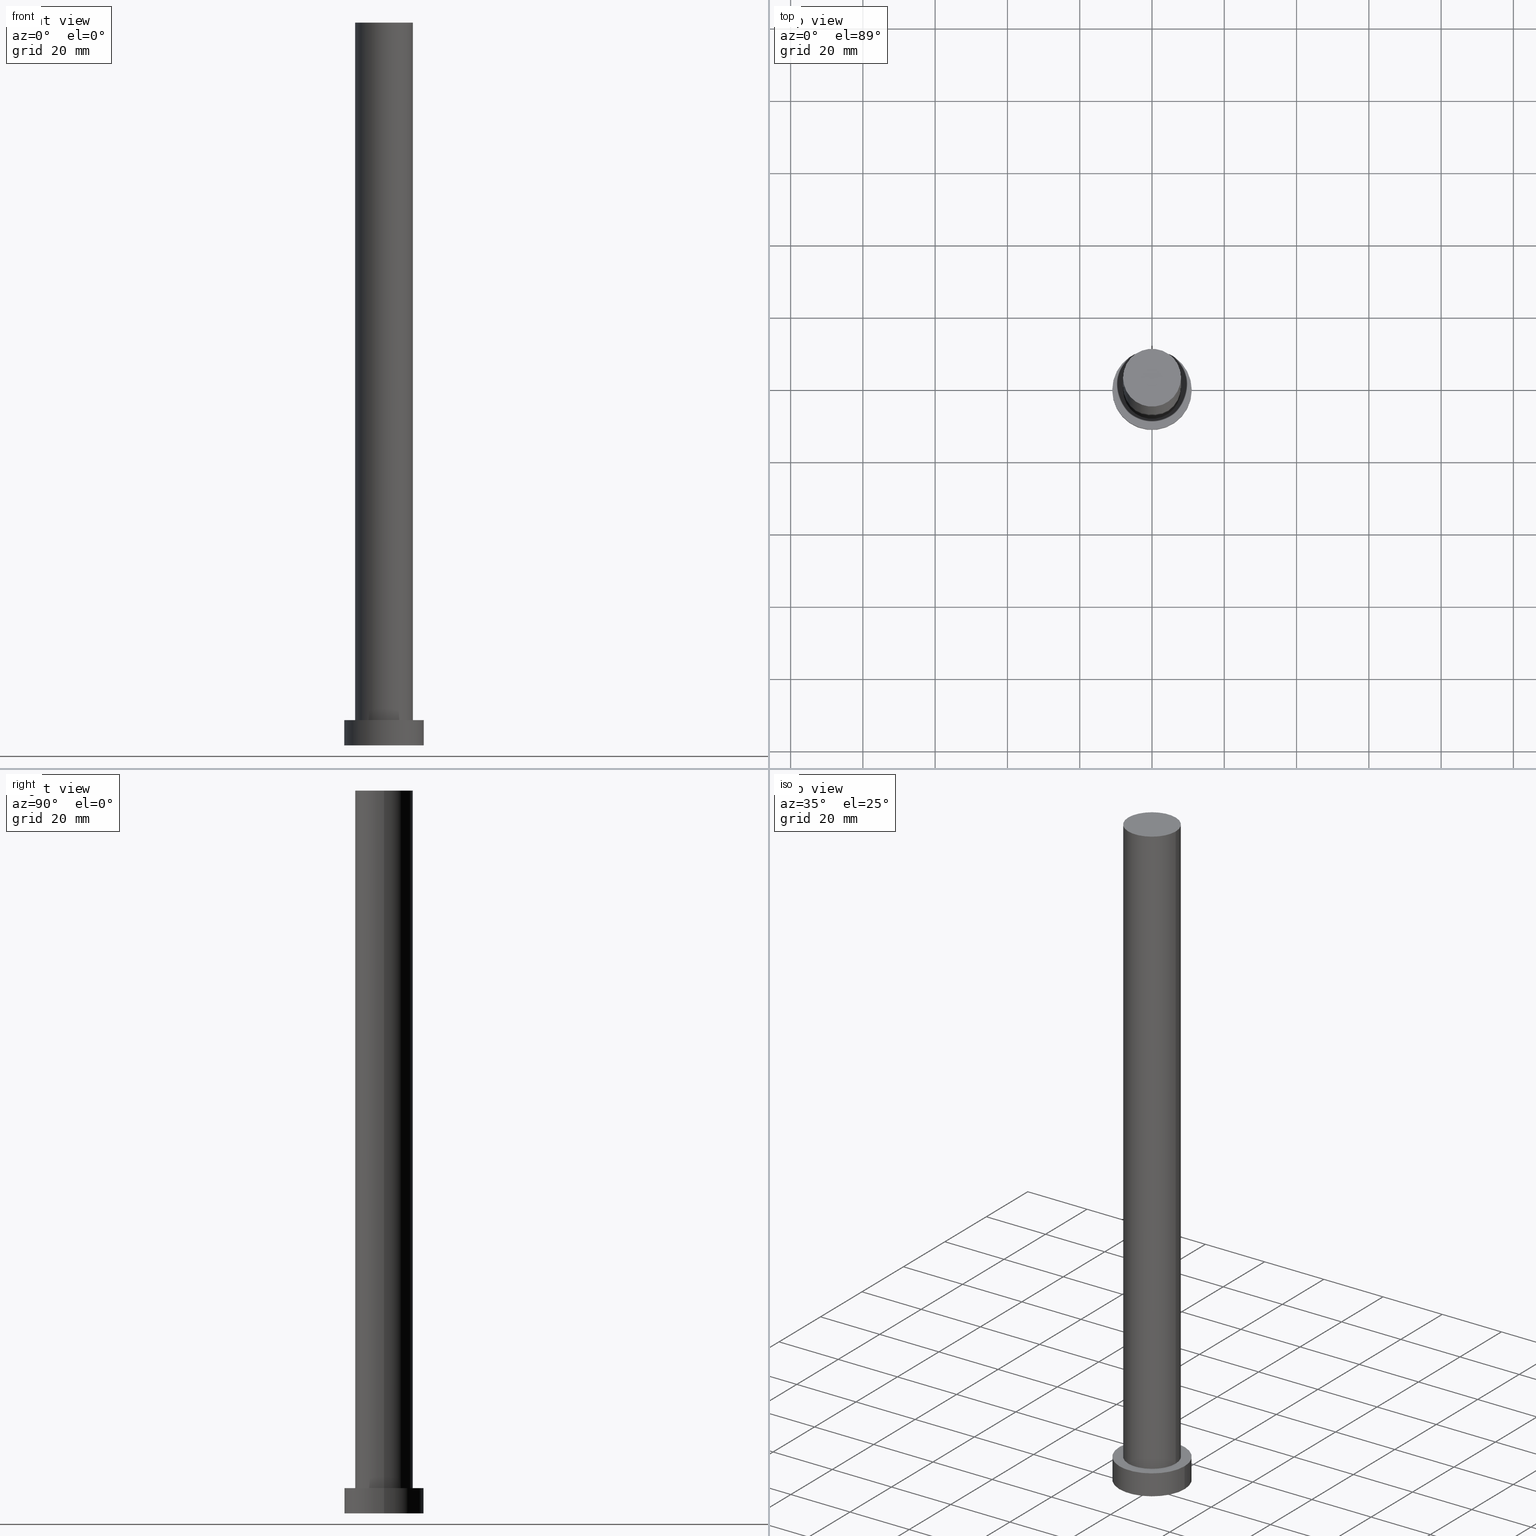
[diagram: canonical four-view strip — front | top / right | iso, engineering-drawing reading convention]
A machine part, canonical four-view strip (front | top / right | iso — engineering-drawing reading convention). The complete STEP part file that produces these views, byte-faithful:
ISO-10303-21;
HEADER;
FILE_DESCRIPTION (( 'STEP AP203' ),
    '1' );
FILE_NAME ('33cf.STEP',
    '2023-02-13T09:46:55',
    ( '' ),
    ( '' ),
    'SwSTEP 2.0',
    'SolidWorks 2019',
    '' );
FILE_SCHEMA (( 'CONFIG_CONTROL_DESIGN' ));
ENDSEC;

DATA;
#1 = PERSON_AND_ORGANIZATION_ROLE ( 'creator' ) ;
#2 = APPROVAL_PERSON_ORGANIZATION ( #197, #163, #43 ) ;
#3 = DIRECTION ( 'NONE',  ( 1.000000000000000000, 0.000000000000000000, 0.000000000000000000 ) ) ;
#4 = AXIS2_PLACEMENT_3D ( 'NONE', #236, #178, #3 ) ;
#5 = APPROVAL_ROLE ( '' ) ;
#6 = PERSON_AND_ORGANIZATION_ROLE ( 'design_owner' ) ;
#7 = CARTESIAN_POINT ( 'NONE',  ( 0.000000000000000000, 0.000000000000000000, 200.0000000000000000 ) ) ;
#8 = CARTESIAN_POINT ( 'NONE',  ( 0.000000000000000000, 0.000000000000000000, 7.000000000000000000 ) ) ;
#9 = CARTESIAN_POINT ( 'NONE',  ( 0.000000000000000000, 0.000000000000000000, 7.000000000000000000 ) ) ;
#10 = CARTESIAN_POINT ( 'NONE',  ( 0.000000000000000000, 0.000000000000000000, 7.000000000000000000 ) ) ;
#11 = CIRCLE ( 'NONE', #73, 11.00000000000000000 ) ;
#12 = CARTESIAN_POINT ( 'NONE',  ( -11.00000000000000000, 0.000000000000000000, 7.000000000000000000 ) ) ;
#13 = EDGE_LOOP ( 'NONE', ( #125, #53, #192, #211 ) ) ;
#14 = CC_DESIGN_PERSON_AND_ORGANIZATION_ASSIGNMENT ( #20, #154, ( #205 ) ) ;
#15 = UNCERTAINTY_MEASURE_WITH_UNIT (LENGTH_MEASURE( 1.000000000000000082E-05 ), #190, 'distance_accuracy_value', 'NONE');
#16 = VERTEX_POINT ( 'NONE', #21 ) ;
#17 = EDGE_CURVE ( 'NONE', #16, #52, #51, .T. ) ;
#18 = VERTEX_POINT ( 'NONE', #45 ) ;
#19 = PERSON_AND_ORGANIZATION_ROLE ( 'creator' ) ;
#20 = PERSON_AND_ORGANIZATION ( #120, #138 ) ;
#21 = CARTESIAN_POINT ( 'NONE',  ( -11.00000000000000000, 0.000000000000000000, 7.000000000000000000 ) ) ;
#22 = DATE_TIME_ROLE ( 'classification_date' ) ;
#23 = CC_DESIGN_APPROVAL ( #163, ( #40 ) ) ;
#24 = CALENDAR_DATE ( 2023, 13, 2 ) ;
#25 = ADVANCED_FACE ( 'NONE', ( #79 ), #238, .T. ) ;
#26 = DIRECTION ( 'NONE',  ( 0.000000000000000000, 0.000000000000000000, 1.000000000000000000 ) ) ;
#27 = AXIS2_PLACEMENT_3D ( 'NONE', #198, #67, #244 ) ;
#28 = FACE_OUTER_BOUND ( 'NONE', #250, .T. ) ;
#29 = SECURITY_CLASSIFICATION ( '', '', #134 ) ;
#30 = ADVANCED_FACE ( 'NONE', ( #220 ), #103, .T. ) ;
#31 = LINE ( 'NONE', #102, #231 ) ;
#32 = DIRECTION ( 'NONE',  ( -0.000000000000000000, -0.000000000000000000, -1.000000000000000000 ) ) ;
#33 = PRODUCT_RELATED_PRODUCT_CATEGORY ( 'detail', '', ( #193 ) ) ;
#34 = CARTESIAN_POINT ( 'NONE',  ( 0.000000000000000000, 0.000000000000000000, 0.000000000000000000 ) ) ;
#35 = LOCAL_TIME ( 10, 46, 55.00000000000000000, #81 ) ;
#36 = DIRECTION ( 'NONE',  ( 1.000000000000000000, 0.000000000000000000, 0.000000000000000000 ) ) ;
#37 = ORIENTED_EDGE ( 'NONE', *, *, #246, .T. ) ;
#38 = CLOSED_SHELL ( 'NONE', ( #155, #253, #30, #144, #217, #25, #114 ) ) ;
#39 = LOCAL_TIME ( 10, 46, 55.00000000000000000, #41 ) ;
#40 = PRODUCT_DEFINITION ( 'NEZN�M�', '', #205, #171 ) ;
#41 = COORDINATED_UNIVERSAL_TIME_OFFSET ( 1, 0, .AHEAD. ) ;
#42 = PERSON_AND_ORGANIZATION ( #120, #138 ) ;
#43 = APPROVAL_ROLE ( '' ) ;
#44 = COORDINATED_UNIVERSAL_TIME_OFFSET ( 1, 0, .AHEAD. ) ;
#45 = CARTESIAN_POINT ( 'NONE',  ( 8.000000000000000000, 9.797174393178825657E-16, 200.0000000000000000 ) ) ;
#46 = PLANE ( 'NONE',  #142 ) ;
#47 = DIRECTION ( 'NONE',  ( -0.000000000000000000, -0.000000000000000000, -1.000000000000000000 ) ) ;
#48 = CARTESIAN_POINT ( 'NONE',  ( -11.00000000000000000, 0.000000000000000000, 0.000000000000000000 ) ) ;
#49 = CARTESIAN_POINT ( 'NONE',  ( 11.00000000000000000, 1.347111479062088405E-15, 7.000000000000000000 ) ) ;
#50 = DIRECTION ( 'NONE',  ( 0.000000000000000000, 0.000000000000000000, 1.000000000000000000 ) ) ;
#51 = CIRCLE ( 'NONE', #4, 11.00000000000000000 ) ;
#52 = VERTEX_POINT ( 'NONE', #49 ) ;
#53 = ORIENTED_EDGE ( 'NONE', *, *, #98, .F. ) ;
#54 = DIRECTION ( 'NONE',  ( 0.000000000000000000, 0.000000000000000000, 1.000000000000000000 ) ) ;
#55 = ORIENTED_EDGE ( 'NONE', *, *, #78, .T. ) ;
#56 = DIRECTION ( 'NONE',  ( -0.000000000000000000, -0.000000000000000000, -1.000000000000000000 ) ) ;
#57 = EDGE_LOOP ( 'NONE', ( #70, #146 ) ) ;
#58 = DATE_AND_TIME ( #111, #39 ) ;
#59 = AXIS2_PLACEMENT_3D ( 'NONE', #208, #54, #36 ) ;
#60 = DATE_AND_TIME ( #181, #35 ) ;
#61 = AXIS2_PLACEMENT_3D ( 'NONE', #7, #158, #66 ) ;
#62 = CARTESIAN_POINT ( 'NONE',  ( 0.000000000000000000, 0.000000000000000000, 200.0000000000000000 ) ) ;
#63 = DIRECTION ( 'NONE',  ( -0.000000000000000000, -0.000000000000000000, -1.000000000000000000 ) ) ;
#64 = CIRCLE ( 'NONE', #61, 8.000000000000000000 ) ;
#65 = CC_DESIGN_PERSON_AND_ORGANIZATION_ASSIGNMENT ( #132, #19, ( #40 ) ) ;
#66 = DIRECTION ( 'NONE',  ( 1.000000000000000000, 0.000000000000000000, 0.000000000000000000 ) ) ;
#67 = DIRECTION ( 'NONE',  ( -0.000000000000000000, -0.000000000000000000, -1.000000000000000000 ) ) ;
#68 = DIRECTION ( 'NONE',  ( 1.000000000000000000, 0.000000000000000000, -0.000000000000000000 ) ) ;
#69 = VECTOR ( 'NONE', #56, 1000.000000000000000 ) ;
#70 = ORIENTED_EDGE ( 'NONE', *, *, #156, .F. ) ;
#71 = ORIENTED_EDGE ( 'NONE', *, *, #226, .T. ) ;
#72 =( NAMED_UNIT ( * ) PLANE_ANGLE_UNIT ( ) SI_UNIT ( $, .RADIAN. ) );
#73 = AXIS2_PLACEMENT_3D ( 'NONE', #34, #87, #101 ) ;
#74 = DIRECTION ( 'NONE',  ( 1.000000000000000000, 0.000000000000000000, -0.000000000000000000 ) ) ;
#75 = APPLICATION_PROTOCOL_DEFINITION ( 'international standard', 'config_control_design', 1994, #150 ) ;
#76 = AXIS2_PLACEMENT_3D ( 'NONE', #126, #116, #196 ) ;
#77 = PERSON_AND_ORGANIZATION_ROLE ( 'classification_officer' ) ;
#78 = EDGE_CURVE ( 'NONE', #18, #96, #31, .T. ) ;
#79 = FACE_OUTER_BOUND ( 'NONE', #13, .T. ) ;
#80 = SHAPE_DEFINITION_REPRESENTATION ( #184, #219 ) ;
#81 = COORDINATED_UNIVERSAL_TIME_OFFSET ( 1, 0, .AHEAD. ) ;
#82 = APPROVAL ( #235, 'NEUR�EN�' ) ;
#83 = AXIS2_PLACEMENT_3D ( 'NONE', #9, #26, #218 ) ;
#84 = CYLINDRICAL_SURFACE ( 'NONE', #194, 8.000000000000000000 ) ;
#85 = DIRECTION ( 'NONE',  ( -0.000000000000000000, -0.000000000000000000, -1.000000000000000000 ) ) ;
#86 = DIRECTION ( 'NONE',  ( 0.000000000000000000, 0.000000000000000000, 1.000000000000000000 ) ) ;
#87 = DIRECTION ( 'NONE',  ( 0.000000000000000000, 0.000000000000000000, 1.000000000000000000 ) ) ;
#88 = CIRCLE ( 'NONE', #83, 11.00000000000000000 ) ;
#89 = ORIENTED_EDGE ( 'NONE', *, *, #148, .F. ) ;
#90 = DIRECTION ( 'NONE',  ( -0.000000000000000000, -0.000000000000000000, -1.000000000000000000 ) ) ;
#91 = EDGE_LOOP ( 'NONE', ( #108, #206, #71, #169 ) ) ;
#92 = AXIS2_PLACEMENT_3D ( 'NONE', #10, #182, #245 ) ;
#93 = CC_DESIGN_SECURITY_CLASSIFICATION ( #29, ( #205 ) ) ;
#94 = COORDINATED_UNIVERSAL_TIME_OFFSET ( 1, 0, .AHEAD. ) ;
#95 = PERSON_AND_ORGANIZATION ( #120, #138 ) ;
#96 = VERTEX_POINT ( 'NONE', #186 ) ;
#97 = DATE_AND_TIME ( #24, #157 ) ;
#98 = EDGE_CURVE ( 'NONE', #112, #18, #201, .T. ) ;
#99 = LINE ( 'NONE', #223, #179 ) ;
#100 = EDGE_CURVE ( 'NONE', #52, #16, #88, .T. ) ;
#101 = DIRECTION ( 'NONE',  ( 1.000000000000000000, 0.000000000000000000, 0.000000000000000000 ) ) ;
#102 = CARTESIAN_POINT ( 'NONE',  ( 8.000000000000000000, 9.797174393178825657E-16, 200.0000000000000000 ) ) ;
#103 = CYLINDRICAL_SURFACE ( 'NONE', #188, 11.00000000000000000 ) ;
#104 = CIRCLE ( 'NONE', #241, 8.000000000000000000 ) ;
#105 = DIRECTION ( 'NONE',  ( -0.000000000000000000, -0.000000000000000000, -1.000000000000000000 ) ) ;
#106 = FACE_OUTER_BOUND ( 'NONE', #174, .T. ) ;
#107 = CARTESIAN_POINT ( 'NONE',  ( 0.000000000000000000, 0.000000000000000000, 7.000000000000000000 ) ) ;
#108 = ORIENTED_EDGE ( 'NONE', *, *, #110, .F. ) ;
#109 = ORIENTED_EDGE ( 'NONE', *, *, #100, .T. ) ;
#110 = EDGE_CURVE ( 'NONE', #52, #209, #121, .T. ) ;
#111 = CALENDAR_DATE ( 2023, 13, 2 ) ;
#112 = VERTEX_POINT ( 'NONE', #248 ) ;
#113 = APPROVAL_STATUS ( 'not_yet_approved' ) ;
#114 = ADVANCED_FACE ( 'NONE', ( #28 ), #161, .T. ) ;
#115 = DATE_AND_TIME ( #176, #153 ) ;
#116 = DIRECTION ( 'NONE',  ( 0.000000000000000000, 0.000000000000000000, 1.000000000000000000 ) ) ;
#117 = AXIS2_PLACEMENT_3D ( 'NONE', #247, #140, #74 ) ;
#118 = DATE_TIME_ROLE ( 'creation_date' ) ;
#119 = DIRECTION ( 'NONE',  ( 0.000000000000000000, 0.000000000000000000, 1.000000000000000000 ) ) ;
#120 = PERSON ( 'NEUR�EN�', 'NEUR�EN�', 'NEUR�EN�', ('NEUR�EN�'), ('NEUR�EN�'), ('NEUR�EN�') ) ;
#121 = LINE ( 'NONE', #141, #162 ) ;
#122 = CARTESIAN_POINT ( 'NONE',  ( 11.00000000000000000, 1.347111479062088405E-15, 0.000000000000000000 ) ) ;
#123 = FACE_OUTER_BOUND ( 'NONE', #207, .T. ) ;
#124 = APPROVAL_PERSON_ORGANIZATION ( #210, #82, #175 ) ;
#125 = ORIENTED_EDGE ( 'NONE', *, *, #78, .F. ) ;
#126 = CARTESIAN_POINT ( 'NONE',  ( 0.000000000000000000, 0.000000000000000000, 0.000000000000000000 ) ) ;
#127 = EDGE_LOOP ( 'NONE', ( #170, #55, #228, #89 ) ) ;
#128 = CYLINDRICAL_SURFACE ( 'NONE', #224, 11.00000000000000000 ) ;
#129 = CIRCLE ( 'NONE', #59, 11.00000000000000000 ) ;
#130 = EDGE_LOOP ( 'NONE', ( #166, #233 ) ) ;
#131 = DATE_AND_TIME ( #240, #172 ) ;
#132 = PERSON_AND_ORGANIZATION ( #120, #138 ) ;
#133 = PERSON_AND_ORGANIZATION ( #120, #138 ) ;
#134 = SECURITY_CLASSIFICATION_LEVEL ( 'unclassified' ) ;
#135 = ORIENTED_EDGE ( 'NONE', *, *, #159, .T. ) ;
#136 = MANIFOLD_SOLID_BREP ( 'P�idat vysunut�m3', #38 ) ;
#137 = APPROVAL_DATE_TIME ( #60, #163 ) ;
#138 = ORGANIZATION ( 'NEUR�EN�', 'NEUR�EN�', '' ) ;
#139 = CARTESIAN_POINT ( 'NONE',  ( 0.000000000000000000, 0.000000000000000000, 200.0000000000000000 ) ) ;
#140 = DIRECTION ( 'NONE',  ( 0.000000000000000000, 0.000000000000000000, 1.000000000000000000 ) ) ;
#141 = CARTESIAN_POINT ( 'NONE',  ( 11.00000000000000000, 1.347111479062088405E-15, 7.000000000000000000 ) ) ;
#142 = AXIS2_PLACEMENT_3D ( 'NONE', #8, #86, #203 ) ;
#143 = FACE_BOUND ( 'NONE', #57, .T. ) ;
#144 = ADVANCED_FACE ( 'NONE', ( #143, #123 ), #46, .T. ) ;
#145 = ORIENTED_EDGE ( 'NONE', *, *, #110, .T. ) ;
#146 = ORIENTED_EDGE ( 'NONE', *, *, #165, .F. ) ;
#147 = LINE ( 'NONE', #12, #69 ) ;
#148 = EDGE_CURVE ( 'NONE', #112, #234, #99, .T. ) ;
#149 =( NAMED_UNIT ( * ) SI_UNIT ( $, .STERADIAN. ) SOLID_ANGLE_UNIT ( ) );
#150 = APPLICATION_CONTEXT ( 'configuration controlled 3d designs of mechanical parts and assemblies' ) ;
#151 = ORIENTED_EDGE ( 'NONE', *, *, #98, .T. ) ;
#152 =( GEOMETRIC_REPRESENTATION_CONTEXT ( 3 ) GLOBAL_UNCERTAINTY_ASSIGNED_CONTEXT ( ( #15 ) ) GLOBAL_UNIT_ASSIGNED_CONTEXT ( ( #190, #72, #149 ) ) REPRESENTATION_CONTEXT ( 'NONE', 'WORKASPACE' ) );
#153 = LOCAL_TIME ( 10, 46, 55.00000000000000000, #214 ) ;
#154 = PERSON_AND_ORGANIZATION_ROLE ( 'design_supplier' ) ;
#155 = ADVANCED_FACE ( 'NONE', ( #187 ), #84, .T. ) ;
#156 = EDGE_CURVE ( 'NONE', #234, #96, #199, .T. ) ;
#157 = LOCAL_TIME ( 10, 46, 55.00000000000000000, #44 ) ;
#158 = DIRECTION ( 'NONE',  ( 0.000000000000000000, 0.000000000000000000, 1.000000000000000000 ) ) ;
#159 = EDGE_CURVE ( 'NONE', #18, #112, #64, .T. ) ;
#160 = PLANE ( 'NONE',  #117 ) ;
#161 = PLANE ( 'NONE',  #212 ) ;
#162 = VECTOR ( 'NONE', #105, 1000.000000000000000 ) ;
#163 = APPROVAL ( #113, 'NEUR�EN�' ) ;
#164 = FACE_OUTER_BOUND ( 'NONE', #130, .T. ) ;
#165 = EDGE_CURVE ( 'NONE', #96, #234, #104, .T. ) ;
#166 = ORIENTED_EDGE ( 'NONE', *, *, #215, .F. ) ;
#167 = AXIS2_PLACEMENT_3D ( 'NONE', #62, #50, #185 ) ;
#168 = CC_DESIGN_APPROVAL ( #82, ( #205 ) ) ;
#169 = ORIENTED_EDGE ( 'NONE', *, *, #215, .T. ) ;
#170 = ORIENTED_EDGE ( 'NONE', *, *, #159, .F. ) ;
#171 = DESIGN_CONTEXT ( 'detailed design', #150, 'design' ) ;
#172 = LOCAL_TIME ( 10, 46, 55.00000000000000000, #94 ) ;
#173 = CC_DESIGN_DATE_AND_TIME_ASSIGNMENT ( #131, #118, ( #40 ) ) ;
#174 = EDGE_LOOP ( 'NONE', ( #191, #145, #37, #227 ) ) ;
#175 = APPROVAL_ROLE ( '' ) ;
#176 = CALENDAR_DATE ( 2023, 13, 2 ) ;
#177 = MECHANICAL_CONTEXT ( 'NONE', #243, 'mechanical' ) ;
#178 = DIRECTION ( 'NONE',  ( 0.000000000000000000, 0.000000000000000000, 1.000000000000000000 ) ) ;
#179 = VECTOR ( 'NONE', #85, 1000.000000000000000 ) ;
#180 = APPROVAL_DATE_TIME ( #97, #239 ) ;
#181 = CALENDAR_DATE ( 2023, 13, 2 ) ;
#182 = DIRECTION ( 'NONE',  ( 0.000000000000000000, 0.000000000000000000, 1.000000000000000000 ) ) ;
#183 = CC_DESIGN_DATE_AND_TIME_ASSIGNMENT ( #115, #22, ( #29 ) ) ;
#184 = PRODUCT_DEFINITION_SHAPE ( 'NONE', 'NONE',  #40 ) ;
#185 = DIRECTION ( 'NONE',  ( 1.000000000000000000, 0.000000000000000000, 0.000000000000000000 ) ) ;
#186 = CARTESIAN_POINT ( 'NONE',  ( 8.000000000000000000, 9.797174393178825657E-16, 7.000000000000000000 ) ) ;
#187 = FACE_OUTER_BOUND ( 'NONE', #127, .T. ) ;
#188 = AXIS2_PLACEMENT_3D ( 'NONE', #222, #47, #242 ) ;
#189 = CARTESIAN_POINT ( 'NONE',  ( 0.000000000000000000, 0.000000000000000000, 200.0000000000000000 ) ) ;
#190 =( LENGTH_UNIT ( ) NAMED_UNIT ( * ) SI_UNIT ( .MILLI., .METRE. ) );
#191 = ORIENTED_EDGE ( 'NONE', *, *, #100, .F. ) ;
#192 = ORIENTED_EDGE ( 'NONE', *, *, #148, .T. ) ;
#193 = PRODUCT ( '33cf', '33cf', '', ( #177 ) ) ;
#194 = AXIS2_PLACEMENT_3D ( 'NONE', #139, #63, #204 ) ;
#195 = VERTEX_POINT ( 'NONE', #48 ) ;
#196 = DIRECTION ( 'NONE',  ( 1.000000000000000000, 0.000000000000000000, 0.000000000000000000 ) ) ;
#197 = PERSON_AND_ORGANIZATION ( #120, #138 ) ;
#198 = CARTESIAN_POINT ( 'NONE',  ( 0.000000000000000000, 0.000000000000000000, 200.0000000000000000 ) ) ;
#199 = CIRCLE ( 'NONE', #92, 8.000000000000000000 ) ;
#200 = DIRECTION ( 'NONE',  ( 1.000000000000000000, 0.000000000000000000, 0.000000000000000000 ) ) ;
#201 = CIRCLE ( 'NONE', #167, 8.000000000000000000 ) ;
#202 = DIRECTION ( 'NONE',  ( 0.000000000000000000, 0.000000000000000000, 1.000000000000000000 ) ) ;
#203 = DIRECTION ( 'NONE',  ( 1.000000000000000000, 0.000000000000000000, -0.000000000000000000 ) ) ;
#204 = DIRECTION ( 'NONE',  ( -1.000000000000000000, 0.000000000000000000, 0.000000000000000000 ) ) ;
#205 = PRODUCT_DEFINITION_FORMATION_WITH_SPECIFIED_SOURCE ( 'LIBOVOLN�', '', #193, .NOT_KNOWN. ) ;
#206 = ORIENTED_EDGE ( 'NONE', *, *, #17, .F. ) ;
#207 = EDGE_LOOP ( 'NONE', ( #252, #109 ) ) ;
#208 = CARTESIAN_POINT ( 'NONE',  ( 0.000000000000000000, 0.000000000000000000, 0.000000000000000000 ) ) ;
#209 = VERTEX_POINT ( 'NONE', #122 ) ;
#210 = PERSON_AND_ORGANIZATION ( #120, #138 ) ;
#211 = ORIENTED_EDGE ( 'NONE', *, *, #156, .T. ) ;
#212 = AXIS2_PLACEMENT_3D ( 'NONE', #189, #202, #68 ) ;
#213 = APPROVAL_DATE_TIME ( #58, #82 ) ;
#214 = COORDINATED_UNIVERSAL_TIME_OFFSET ( 1, 0, .AHEAD. ) ;
#215 = EDGE_CURVE ( 'NONE', #195, #209, #11, .T. ) ;
#216 = APPROVAL_STATUS ( 'not_yet_approved' ) ;
#217 = ADVANCED_FACE ( 'NONE', ( #164 ), #160, .F. ) ;
#218 = DIRECTION ( 'NONE',  ( 1.000000000000000000, 0.000000000000000000, 0.000000000000000000 ) ) ;
#219 = ADVANCED_BREP_SHAPE_REPRESENTATION ( '33cf', ( #136, #76 ), #152 ) ;
#220 = FACE_OUTER_BOUND ( 'NONE', #91, .T. ) ;
#221 = CARTESIAN_POINT ( 'NONE',  ( 0.000000000000000000, 0.000000000000000000, 7.000000000000000000 ) ) ;
#222 = CARTESIAN_POINT ( 'NONE',  ( 0.000000000000000000, 0.000000000000000000, 7.000000000000000000 ) ) ;
#223 = CARTESIAN_POINT ( 'NONE',  ( -8.000000000000000000, 0.000000000000000000, 200.0000000000000000 ) ) ;
#224 = AXIS2_PLACEMENT_3D ( 'NONE', #107, #90, #255 ) ;
#225 = CC_DESIGN_PERSON_AND_ORGANIZATION_ASSIGNMENT ( #133, #77, ( #29 ) ) ;
#226 = EDGE_CURVE ( 'NONE', #16, #195, #147, .T. ) ;
#227 = ORIENTED_EDGE ( 'NONE', *, *, #226, .F. ) ;
#228 = ORIENTED_EDGE ( 'NONE', *, *, #165, .T. ) ;
#229 = CARTESIAN_POINT ( 'NONE',  ( -8.000000000000000000, 0.000000000000000000, 7.000000000000000000 ) ) ;
#230 = CC_DESIGN_PERSON_AND_ORGANIZATION_ASSIGNMENT ( #237, #6, ( #193 ) ) ;
#231 = VECTOR ( 'NONE', #32, 1000.000000000000000 ) ;
#232 = APPROVAL_PERSON_ORGANIZATION ( #95, #239, #5 ) ;
#233 = ORIENTED_EDGE ( 'NONE', *, *, #246, .F. ) ;
#234 = VERTEX_POINT ( 'NONE', #229 ) ;
#235 = APPROVAL_STATUS ( 'not_yet_approved' ) ;
#236 = CARTESIAN_POINT ( 'NONE',  ( 0.000000000000000000, 0.000000000000000000, 7.000000000000000000 ) ) ;
#237 = PERSON_AND_ORGANIZATION ( #120, #138 ) ;
#238 = CYLINDRICAL_SURFACE ( 'NONE', #27, 8.000000000000000000 ) ;
#239 = APPROVAL ( #216, 'NEUR�EN�' ) ;
#240 = CALENDAR_DATE ( 2023, 13, 2 ) ;
#241 = AXIS2_PLACEMENT_3D ( 'NONE', #221, #119, #200 ) ;
#242 = DIRECTION ( 'NONE',  ( -1.000000000000000000, 0.000000000000000000, 0.000000000000000000 ) ) ;
#243 = APPLICATION_CONTEXT ( 'configuration controlled 3d designs of mechanical parts and assemblies' ) ;
#244 = DIRECTION ( 'NONE',  ( -1.000000000000000000, 0.000000000000000000, 0.000000000000000000 ) ) ;
#245 = DIRECTION ( 'NONE',  ( 1.000000000000000000, 0.000000000000000000, 0.000000000000000000 ) ) ;
#246 = EDGE_CURVE ( 'NONE', #209, #195, #129, .T. ) ;
#247 = CARTESIAN_POINT ( 'NONE',  ( 0.000000000000000000, 0.000000000000000000, 0.000000000000000000 ) ) ;
#248 = CARTESIAN_POINT ( 'NONE',  ( -8.000000000000000000, 0.000000000000000000, 200.0000000000000000 ) ) ;
#249 = CC_DESIGN_PERSON_AND_ORGANIZATION_ASSIGNMENT ( #42, #1, ( #205 ) ) ;
#250 = EDGE_LOOP ( 'NONE', ( #151, #135 ) ) ;
#251 = APPLICATION_PROTOCOL_DEFINITION ( 'international standard', 'config_control_design', 1994, #243 ) ;
#252 = ORIENTED_EDGE ( 'NONE', *, *, #17, .T. ) ;
#253 = ADVANCED_FACE ( 'NONE', ( #106 ), #128, .T. ) ;
#254 = CC_DESIGN_APPROVAL ( #239, ( #29 ) ) ;
#255 = DIRECTION ( 'NONE',  ( -1.000000000000000000, 0.000000000000000000, 0.000000000000000000 ) ) ;
ENDSEC;
END-ISO-10303-21;
